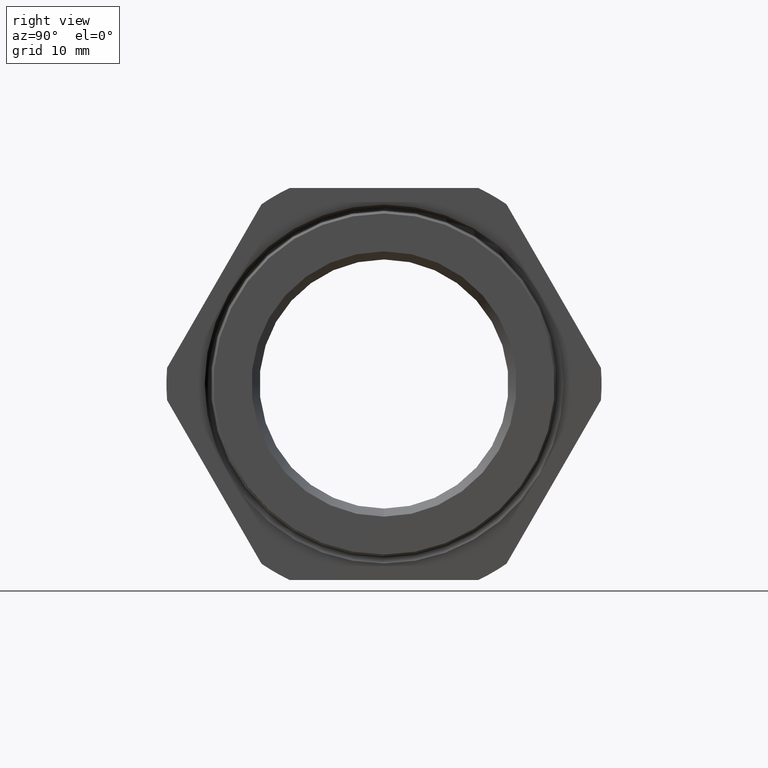
[diagram: clean part render]
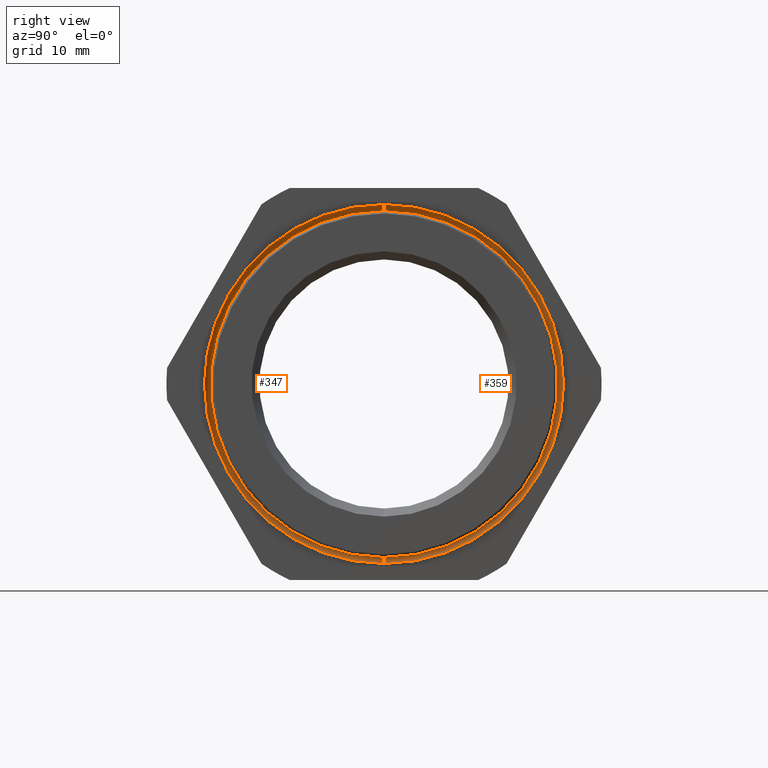
[diagram: same view with one multi-face feature highlighted, each face labeled with its STEP entity id]
A machine part, right view. The highlighted faces form ONE feature: a constant-radius fillet chain: 2 tangent blend faces with common blend radius 1.016 mm. The faces share edges in the B-rep.
Their STEP definitions:
[1] entity #347 (Torus):
#347 = ADVANCED_FACE ( 'NONE', ( #1160 ), #1159, .F. ) ;
#348 = EDGE_LOOP ( 'NONE', ( #349, #350, #353, #356 ) ) ;
#349 = ORIENTED_EDGE ( 'NONE', *, *, #401, .F. ) ;
#350 = ORIENTED_EDGE ( 'NONE', *, *, #351, .T. ) ;
#351 = EDGE_CURVE ( 'NONE', #456, #352, #1220, .T. ) ;
#352 = VERTEX_POINT ( 'NONE', #1215 ) ;
#353 = ORIENTED_EDGE ( 'NONE', *, *, #354, .F. ) ;
#354 = EDGE_CURVE ( 'NONE', #355, #352, #1214, .T. ) ;
#355 = VERTEX_POINT ( 'NONE', #1209 ) ;
#356 = ORIENTED_EDGE ( 'NONE', *, *, #357, .F. ) ;
#357 = EDGE_CURVE ( 'NONE', #453, #355, #1205, .T. ) ;
#401 = EDGE_CURVE ( 'NONE', #456, #453, #1315, .T. ) ;
#453 = VERTEX_POINT ( 'NONE', #1357 ) ;
#456 = VERTEX_POINT ( 'NONE', #1351 ) ;
#1155 = DIRECTION ( 'NONE',  ( 0.0000000000000000000, 0.0000000000000000000, -1.000000000000000000 ) ) ;
#1156 = DIRECTION ( 'NONE',  ( 1.000000000000000000, 0.0000000000000000000, 0.0000000000000000000 ) ) ;
#1157 = CARTESIAN_POINT ( 'NONE',  ( -0.3089999999999999400, 0.0000000000000000000, 0.0000000000000000000 ) ) ;
#1158 = AXIS2_PLACEMENT_3D ( 'NONE', #1157, #1156, #1155 ) ;
#1159 = TOROIDAL_SURFACE ( 'NONE', #1158, 1.040636820295670200, 0.03999999999999996600 ) ;
#1160 = FACE_OUTER_BOUND ( 'NONE', #348, .T. ) ;
#1201 = DIRECTION ( 'NONE',  ( 0.0000000000000000000, 0.0000000000000000000, -1.000000000000000000 ) ) ;
#1202 = DIRECTION ( 'NONE',  ( 0.0000000000000000000, -1.000000000000000000, 0.0000000000000000000 ) ) ;
#1203 = CARTESIAN_POINT ( 'NONE',  ( -0.3089999999999999400, 0.0000000000000000000, -1.040636820295670200 ) ) ;
#1204 = AXIS2_PLACEMENT_3D ( 'NONE', #1203, #1202, #1201 ) ;
#1205 = CIRCLE ( 'NONE', #1204, 0.03999999999999998000 ) ;
#1209 = CARTESIAN_POINT ( 'NONE',  ( -0.3100000000000000000, 0.0000000000000000000, -1.080624318341934600 ) ) ;
#1210 = DIRECTION ( 'NONE',  ( 0.0000000000000000000, 0.0000000000000000000, -1.000000000000000000 ) ) ;
#1211 = DIRECTION ( 'NONE',  ( -1.000000000000000000, 0.0000000000000000000, 0.0000000000000000000 ) ) ;
#1212 = CARTESIAN_POINT ( 'NONE',  ( -0.3100000000000000000, 0.0000000000000000000, 0.0000000000000000000 ) ) ;
#1213 = AXIS2_PLACEMENT_3D ( 'NONE', #1212, #1211, #1210 ) ;
#1214 = CIRCLE ( 'NONE', #1213, 1.080624318341934600 ) ;
#1215 = CARTESIAN_POINT ( 'NONE',  ( -0.3100000000000000000, 1.323383112538240800E-016, 1.080624318341934600 ) ) ;
#1216 = DIRECTION ( 'NONE',  ( 0.0000000000000000000, 1.224646799147351000E-016, 1.000000000000000000 ) ) ;
#1217 = DIRECTION ( 'NONE',  ( 0.0000000000000000000, 1.000000000000000000, -1.224646799147353200E-016 ) ) ;
#1218 = CARTESIAN_POINT ( 'NONE',  ( -0.3089999999999999400, 1.274412551049971900E-016, 1.040636820295670200 ) ) ;
#1219 = AXIS2_PLACEMENT_3D ( 'NONE', #1218, #1217, #1216 ) ;
#1220 = CIRCLE ( 'NONE', #1219, 0.03999999999999998000 ) ;
#1258 = CARTESIAN_POINT ( 'NONE',  ( -0.3089999999999999400, 0.0000000000000000000, 0.0000000000000000000 ) ) ;
#1312 = DIRECTION ( 'NONE',  ( 0.0000000000000000000, 0.0000000000000000000, -1.000000000000000000 ) ) ;
#1313 = DIRECTION ( 'NONE',  ( 1.000000000000000000, 0.0000000000000000000, 0.0000000000000000000 ) ) ;
#1314 = AXIS2_PLACEMENT_3D ( 'NONE', #1258, #1313, #1312 ) ;
#1315 = CIRCLE ( 'NONE', #1314, 1.000636820295670100 ) ;
#1351 = CARTESIAN_POINT ( 'NONE',  ( -0.3089999999999999400, 1.225426679084077900E-016, 1.000636820295670100 ) ) ;
#1357 = CARTESIAN_POINT ( 'NONE',  ( -0.3089999999999999400, 0.0000000000000000000, -1.000636820295670100 ) ) ;
[2] entity #359 (Torus):
#299 = EDGE_LOOP ( 'NONE', ( #360, #361, #362, #363 ) ) ;
#351 = EDGE_CURVE ( 'NONE', #456, #352, #1220, .T. ) ;
#352 = VERTEX_POINT ( 'NONE', #1215 ) ;
#355 = VERTEX_POINT ( 'NONE', #1209 ) ;
#357 = EDGE_CURVE ( 'NONE', #453, #355, #1205, .T. ) ;
#359 = ADVANCED_FACE ( 'NONE', ( #1207 ), #1199, .F. ) ;
#360 = ORIENTED_EDGE ( 'NONE', *, *, #455, .F. ) ;
#361 = ORIENTED_EDGE ( 'NONE', *, *, #357, .T. ) ;
#362 = ORIENTED_EDGE ( 'NONE', *, *, #4115, .F. ) ;
#363 = ORIENTED_EDGE ( 'NONE', *, *, #351, .F. ) ;
#453 = VERTEX_POINT ( 'NONE', #1357 ) ;
#455 = EDGE_CURVE ( 'NONE', #453, #456, #1356, .T. ) ;
#456 = VERTEX_POINT ( 'NONE', #1351 ) ;
#1196 = DIRECTION ( 'NONE',  ( 0.0000000000000000000, 0.0000000000000000000, -1.000000000000000000 ) ) ;
#1197 = DIRECTION ( 'NONE',  ( 1.000000000000000000, 0.0000000000000000000, 0.0000000000000000000 ) ) ;
#1198 = AXIS2_PLACEMENT_3D ( 'NONE', #1200, #1197, #1196 ) ;
#1199 = TOROIDAL_SURFACE ( 'NONE', #1198, 1.040636820295670200, 0.03999999999999996600 ) ;
#1200 = CARTESIAN_POINT ( 'NONE',  ( -0.3089999999999999400, 0.0000000000000000000, 0.0000000000000000000 ) ) ;
#1201 = DIRECTION ( 'NONE',  ( 0.0000000000000000000, 0.0000000000000000000, -1.000000000000000000 ) ) ;
#1202 = DIRECTION ( 'NONE',  ( 0.0000000000000000000, -1.000000000000000000, 0.0000000000000000000 ) ) ;
#1203 = CARTESIAN_POINT ( 'NONE',  ( -0.3089999999999999400, 0.0000000000000000000, -1.040636820295670200 ) ) ;
#1204 = AXIS2_PLACEMENT_3D ( 'NONE', #1203, #1202, #1201 ) ;
#1205 = CIRCLE ( 'NONE', #1204, 0.03999999999999998000 ) ;
#1207 = FACE_OUTER_BOUND ( 'NONE', #299, .T. ) ;
#1209 = CARTESIAN_POINT ( 'NONE',  ( -0.3100000000000000000, 0.0000000000000000000, -1.080624318341934600 ) ) ;
#1215 = CARTESIAN_POINT ( 'NONE',  ( -0.3100000000000000000, 1.323383112538240800E-016, 1.080624318341934600 ) ) ;
#1216 = DIRECTION ( 'NONE',  ( 0.0000000000000000000, 1.224646799147351000E-016, 1.000000000000000000 ) ) ;
#1217 = DIRECTION ( 'NONE',  ( 0.0000000000000000000, 1.000000000000000000, -1.224646799147353200E-016 ) ) ;
#1218 = CARTESIAN_POINT ( 'NONE',  ( -0.3089999999999999400, 1.274412551049971900E-016, 1.040636820295670200 ) ) ;
#1219 = AXIS2_PLACEMENT_3D ( 'NONE', #1218, #1217, #1216 ) ;
#1220 = CIRCLE ( 'NONE', #1219, 0.03999999999999998000 ) ;
#1351 = CARTESIAN_POINT ( 'NONE',  ( -0.3089999999999999400, 1.225426679084077900E-016, 1.000636820295670100 ) ) ;
#1352 = DIRECTION ( 'NONE',  ( 0.0000000000000000000, 0.0000000000000000000, -1.000000000000000000 ) ) ;
#1353 = DIRECTION ( 'NONE',  ( 1.000000000000000000, 0.0000000000000000000, 0.0000000000000000000 ) ) ;
#1354 = CARTESIAN_POINT ( 'NONE',  ( -0.3089999999999999400, 0.0000000000000000000, 0.0000000000000000000 ) ) ;
#1355 = AXIS2_PLACEMENT_3D ( 'NONE', #1354, #1353, #1352 ) ;
#1356 = CIRCLE ( 'NONE', #1355, 1.000636820295670100 ) ;
#1357 = CARTESIAN_POINT ( 'NONE',  ( -0.3089999999999999400, 0.0000000000000000000, -1.000636820295670100 ) ) ;
#3567 = CIRCLE ( 'NONE', #3629, 1.080624318341934600 ) ;
#3626 = DIRECTION ( 'NONE',  ( 0.0000000000000000000, 0.0000000000000000000, -1.000000000000000000 ) ) ;
#3627 = DIRECTION ( 'NONE',  ( -1.000000000000000000, 0.0000000000000000000, 0.0000000000000000000 ) ) ;
#3628 = CARTESIAN_POINT ( 'NONE',  ( -0.3100000000000000000, 0.0000000000000000000, 0.0000000000000000000 ) ) ;
#3629 = AXIS2_PLACEMENT_3D ( 'NONE', #3628, #3627, #3626 ) ;
#4115 = EDGE_CURVE ( 'NONE', #352, #355, #3567, .T. ) ;